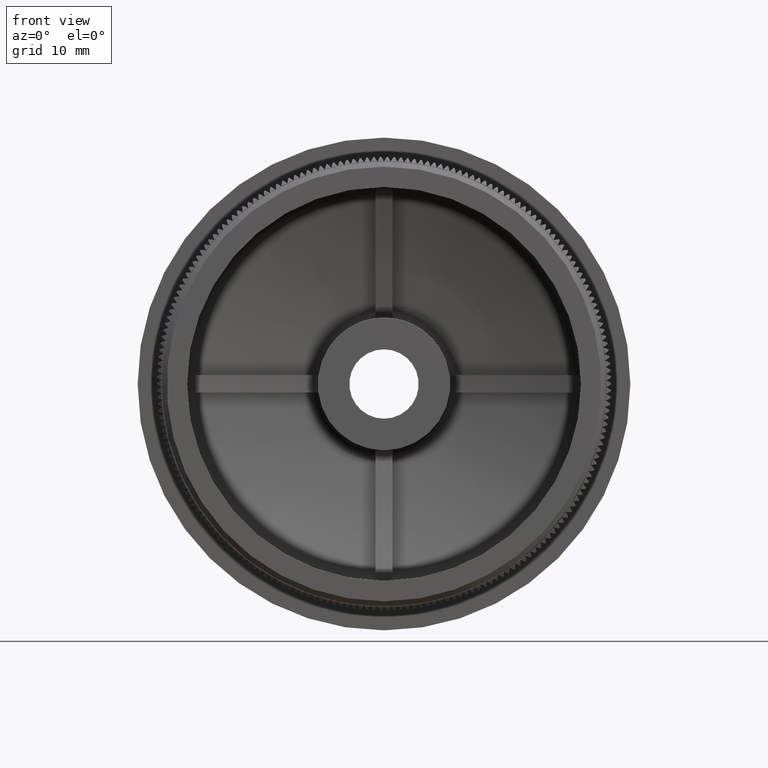
[diagram: clean part render]
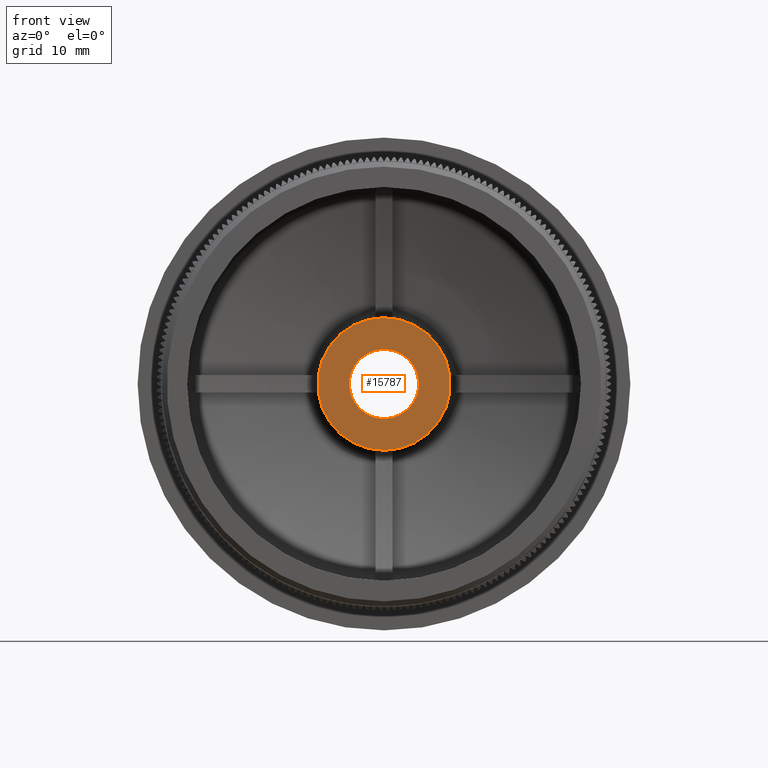
[diagram: same view with one face highlighted and labeled with its STEP entity id]
A machine part, front view. The second image highlights one B-rep face of the part: STEP entity #15787.
In plain terms, the highlighted planar face has unit normal (0, -1, 0).
Its self-contained STEP definition (entity closure, byte-faithful):
#464 = ORIENTED_EDGE ( 'NONE', *, *, #37941, .F. ) ;
#3447 = DIRECTION ( 'NONE',  ( -0.0000000000000000000, -1.000000000000000000, -0.0000000000000000000 ) ) ;
#4031 = DIRECTION ( 'NONE',  ( 0.0000000000000000000, 0.0000000000000000000, -1.000000000000000000 ) ) ;
#6178 = DIRECTION ( 'NONE',  ( -0.0000000000000000000, -1.000000000000000000, -0.0000000000000000000 ) ) ;
#7614 = CARTESIAN_POINT ( 'NONE',  ( 0.0000000000000000000, 6.500000000000000000, 0.0000000000000000000 ) ) ;
#9814 = DIRECTION ( 'NONE',  ( 0.0000000000000000000, -1.000000000000000000, 0.0000000000000000000 ) ) ;
#14067 = CIRCLE ( 'NONE', #16528, 3.399999999999998600 ) ;
#15787 = ADVANCED_FACE ( 'NONE', ( #22728, #26200 ), #18605, .T. ) ;
#16380 = AXIS2_PLACEMENT_3D ( 'NONE', #27500, #9814, #40895 ) ;
#16528 = AXIS2_PLACEMENT_3D ( 'NONE', #54839, #6178, #24051 ) ;
#18605 = PLANE ( 'NONE',  #16380 ) ;
#19200 = CIRCLE ( 'NONE', #43943, 6.500000000000000900 ) ;
#19297 = ORIENTED_EDGE ( 'NONE', *, *, #39318, .T. ) ;
#19787 = EDGE_CURVE ( 'NONE', #34607, #20549, #14067, .T. ) ;
#20549 = VERTEX_POINT ( 'NONE', #21933 ) ;
#20838 = CARTESIAN_POINT ( 'NONE',  ( 0.0000000000000000000, 6.500000000000000000, -6.500000000000000900 ) ) ;
#21933 = CARTESIAN_POINT ( 'NONE',  ( 4.163799117100998600E-016, 6.500000000000000000, 3.399999999999998600 ) ) ;
#22378 = VERTEX_POINT ( 'NONE', #20838 ) ;
#22728 = FACE_BOUND ( 'NONE', #39309, .T. ) ;
#23054 = ORIENTED_EDGE ( 'NONE', *, *, #35309, .T. ) ;
#24051 = DIRECTION ( 'NONE',  ( 0.0000000000000000000, 0.0000000000000000000, -1.000000000000000000 ) ) ;
#24663 = CARTESIAN_POINT ( 'NONE',  ( 7.960204194457796500E-016, 6.500000000000000000, 6.500000000000000900 ) ) ;
#24935 = DIRECTION ( 'NONE',  ( 0.0000000000000000000, 0.0000000000000000000, -1.000000000000000000 ) ) ;
#26200 = FACE_OUTER_BOUND ( 'NONE', #28500, .T. ) ;
#26881 = DIRECTION ( 'NONE',  ( 0.0000000000000000000, 0.0000000000000000000, -1.000000000000000000 ) ) ;
#27500 = CARTESIAN_POINT ( 'NONE',  ( 0.0000000000000000000, 6.500000000000000000, 0.0000000000000000000 ) ) ;
#27899 = AXIS2_PLACEMENT_3D ( 'NONE', #43779, #3447, #4031 ) ;
#28500 = EDGE_LOOP ( 'NONE', ( #23054, #19297 ) ) ;
#30811 = AXIS2_PLACEMENT_3D ( 'NONE', #48956, #53403, #26881 ) ;
#34607 = VERTEX_POINT ( 'NONE', #57293 ) ;
#35309 = EDGE_CURVE ( 'NONE', #22378, #42471, #42412, .T. ) ;
#37941 = EDGE_CURVE ( 'NONE', #20549, #34607, #42834, .T. ) ;
#38888 = DIRECTION ( 'NONE',  ( 0.0000000000000000000, -1.000000000000000000, 0.0000000000000000000 ) ) ;
#39309 = EDGE_LOOP ( 'NONE', ( #41997, #464 ) ) ;
#39318 = EDGE_CURVE ( 'NONE', #42471, #22378, #19200, .T. ) ;
#40895 = DIRECTION ( 'NONE',  ( 0.0000000000000000000, -0.0000000000000000000, -1.000000000000000000 ) ) ;
#41997 = ORIENTED_EDGE ( 'NONE', *, *, #19787, .F. ) ;
#42412 = CIRCLE ( 'NONE', #30811, 6.500000000000000900 ) ;
#42471 = VERTEX_POINT ( 'NONE', #24663 ) ;
#42834 = CIRCLE ( 'NONE', #27899, 3.399999999999998600 ) ;
#43779 = CARTESIAN_POINT ( 'NONE',  ( 0.0000000000000000000, 6.500000000000000000, 0.0000000000000000000 ) ) ;
#43943 = AXIS2_PLACEMENT_3D ( 'NONE', #7614, #38888, #24935 ) ;
#48956 = CARTESIAN_POINT ( 'NONE',  ( 0.0000000000000000000, 6.500000000000000000, 0.0000000000000000000 ) ) ;
#53403 = DIRECTION ( 'NONE',  ( 0.0000000000000000000, -1.000000000000000000, 0.0000000000000000000 ) ) ;
#54839 = CARTESIAN_POINT ( 'NONE',  ( 0.0000000000000000000, 6.500000000000000000, 0.0000000000000000000 ) ) ;
#57293 = CARTESIAN_POINT ( 'NONE',  ( 0.0000000000000000000, 6.500000000000000000, -3.399999999999998600 ) ) ;